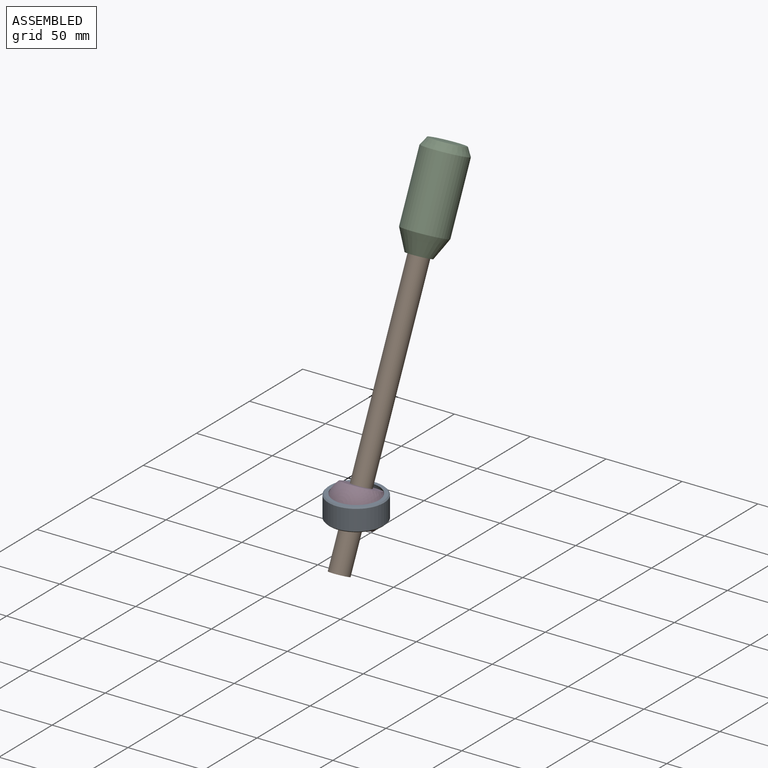
[diagram: assembled view]
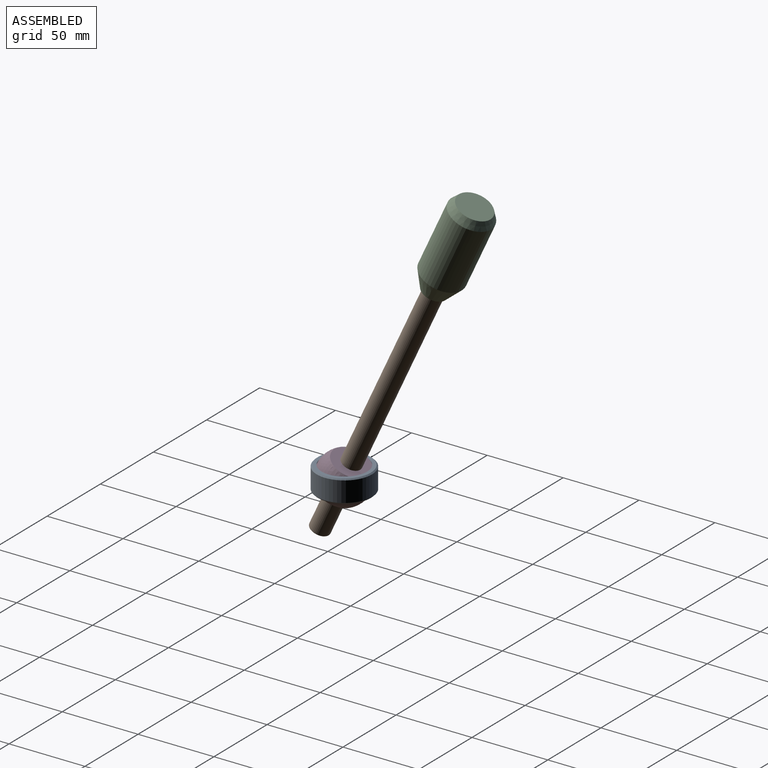
[diagram: assembled view, second angle]
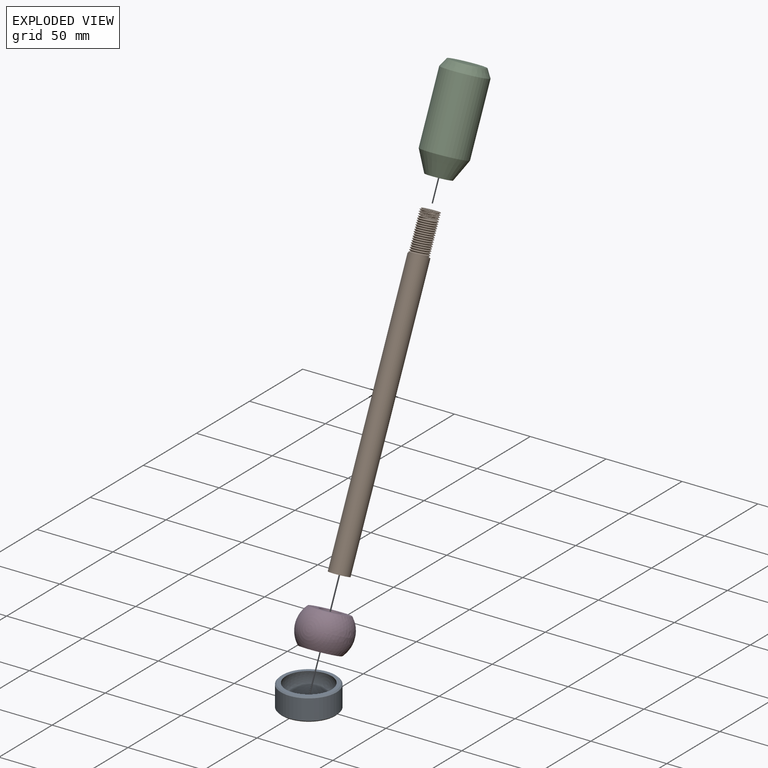
[diagram: exploded view]
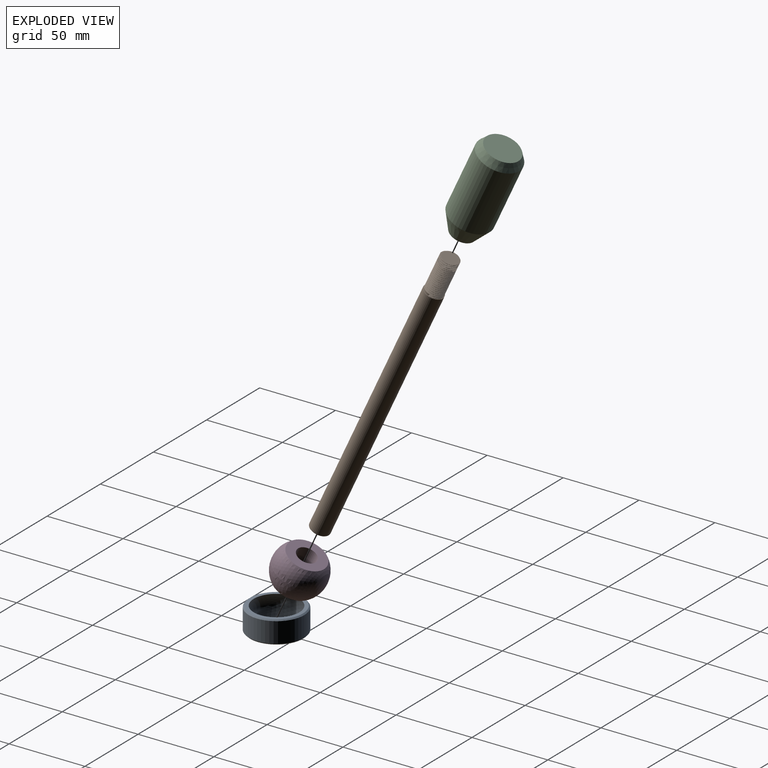
[diagram: exploded view, second angle]
ASSEMBLY  parts=4 mates=3
PART A: 6 faces, bbox 36.5x36.5x33.7 mm
  f0: cylinder r=18.26mm len=36.51mm, axis (0,0,-1), area 1543.5mm2, adj f4,f5
  f1: plane 34.89x34.89mm, normal (0,0,1), area 244.8mm2, adj f3,f4
  f2: plane 34.89x34.89mm, normal (0,0,-1), area 244.8mm2, adj f3,f5
  f3: sphere r=16.83mm, area 1595mm2, adj f1,f2
  f4: cone r=17.44mm half-angle=45deg, axis (0,0,-1), area 128.9mm2, adj f0,f1
  f5: cone r=18.26mm half-angle=45deg, axis (0,0,1), area 128.9mm2, adj f0,f2
PART B: 30 faces, bbox 14.7x13.5x204.8 mm
  f0: cylinder r=6mm len=12mm, axis (0,0,1), area 27mm2, adj f19,f25,f27,f28,f29
  f1: cylinder r=6mm len=7.99mm, axis (0,0,1), area 0.8mm2, adj f2,f26,f28,f29
  f2: cylinder r=6mm len=12mm, axis (0,0,1), area 3mm2, adj f1,f3,f28,f29
  f3: cylinder r=6mm len=12mm, axis (0,0,1), area 3mm2, adj f2,f4,f28,f29
  f4: cylinder r=6mm len=12mm, axis (0,0,1), area 3mm2, adj f3,f5,f28,f29
  f5: cylinder r=6mm len=12mm, axis (0,0,1), area 3mm2, adj f4,f6,f28,f29
  f6: cylinder r=6mm len=12mm, axis (0,0,1), area 3mm2, adj f5,f7,f28,f29
  f7: cylinder r=6mm len=12mm, axis (0,0,1), area 3mm2, adj f6,f8,f28,f29
  f8: cylinder r=6mm len=12mm, axis (0,0,1), area 3mm2, adj f7,f9,f28,f29
  f9: cylinder r=6mm len=12mm, axis (0,0,1), area 3mm2, adj f8,f10,f28,f29
  f10: cylinder r=6mm len=12mm, axis (0,0,1), area 3mm2, adj f9,f11,f28,f29
  f11: cylinder r=6mm len=12mm, axis (0,0,1), area 3mm2, adj f10,f12,f28,f29
  f12: cylinder r=6mm len=12mm, axis (0,0,1), area 3mm2, adj f11,f13,f28,f29
  f13: cylinder r=6mm len=12mm, axis (0,0,1), area 3mm2, adj f12,f14,f28,f29
  f14: cylinder r=6mm len=12mm, axis (0,0,1), area 3mm2, adj f13,f15,f28,f29
  f15: cylinder r=6mm len=12mm, axis (0,0,1), area 3mm2, adj f14,f16,f28,f29
  f16: cylinder r=6mm len=12mm, axis (0,0,1), area 3mm2, adj f15,f17,f28,f29
  f17: cylinder r=6mm len=12mm, axis (0,0,1), area 3mm2, adj f16,f18,f28,f29
  f18: cylinder r=6mm len=12mm, axis (0,0,1), area 3mm2, adj f17,f19,f28,f29
  f19: cylinder r=6mm len=12mm, axis (0,0,1), area 3mm2, adj f0,f18,f28,f29
  f20: cylinder r=6.35mm len=177.8mm, axis (0,0,-1), area 7093.9mm2, adj f21,f25
  f21: plane 12.7x12.7mm, normal (0,0,-1), area 81.1mm2, adj f20,f24
  f22: cone r=0mm half-angle=59deg, axis (0,0,-1), area 36.9mm2, adj f23
  f23: cylinder r=3.17mm len=24.77mm, axis (0,0,-1), area 494mm2, adj f22,f24
  f24: cone r=3.17mm half-angle=45deg, axis (0,0,-1), area 19.7mm2, adj f21,f23
  f25: plane 12.7x12.7mm, normal (0,0,1), area 13.6mm2, adj f0,f20
  f26: plane 11.92x11.88mm, normal (0,0,1), area 96.1mm2, adj f1,f28,f29
  f27: plane 1.18x1.02mm, normal (-0.06,1,0), area 0.6mm2, adj f0,f28,f29
  f28: bspline ~25.69x13.85mm, area 789.3mm2, adj f0,f1,f2,f3,f4,f5,f6,f7
  f29: bspline ~26.11x13.85mm, area 812.2mm2, adj f0,f1,f2,f3,f4,f5,f6,f7
PART C: 7 faces, bbox 28.6x28.6x63.5 mm
  f0: plane 16.06x16.06mm, normal (0,0,-1), area 88.7mm2, adj f1,f4
  f1: cone r=8.03mm half-angle=26.2deg, axis (0,0,1), area 992.7mm2, adj f0,f3
  f2: plane 22.71x22.71mm, normal (0,0,1), area 405mm2, adj f6
  f3: cylinder r=14.29mm len=45.72mm, axis (0,0,1), area 4104.3mm2, adj f1,f6
  f4: cylinder r=6.02mm len=38.1mm, axis (0,0,-1), area 1442mm2, adj f0,f5
  f5: cone r=0mm half-angle=59deg, axis (0,0,-1), area 133mm2, adj f4
  f6: cone r=14.29mm half-angle=30deg, axis (0,0,-1), area 472.5mm2, adj f2,f3
PART D: 4 faces, bbox 33.3x33.3x33.3 mm
  f0: sphere r=16.66mm, area 2326.8mm2, adj f1,f2
  f1: plane 24.83x24.83mm, normal (0,0,1), area 357.6mm2, adj f0,f3
  f2: plane 24.83x24.83mm, normal (0,0,-1), area 357.6mm2, adj f0,f3
  f3: cylinder r=6.35mm len=22.23mm, axis (0,0,1), area 886.7mm2, adj f1,f2
PLACE A t=(-94.13,-64.93,117.99)mm
PLACE B rot(axis=(-1,0,0),25deg) t=(-94.13,-81.03,83.46)mm
PLACE C rot(axis=(-1,0,0),25deg) t=(-94.13,-5.89,244.6)mm
PLACE D rot(axis=(-1,0,0),25deg) t=(-94.13,-64.93,117.99)mm
MATE fastened C.f1 <-> B.f0  axis (0,0.42,0.91) through (-94.13,-5.89,244.6)mm
MATE ball D.f3 <-> A.f0  axis (0,0.42,0.91) through (-94.13,-64.93,117.99)mm
MATE slider D.f3 <-> B.f0  axis (0,0.42,0.91) through (-94.13,-64.93,117.99)mm
